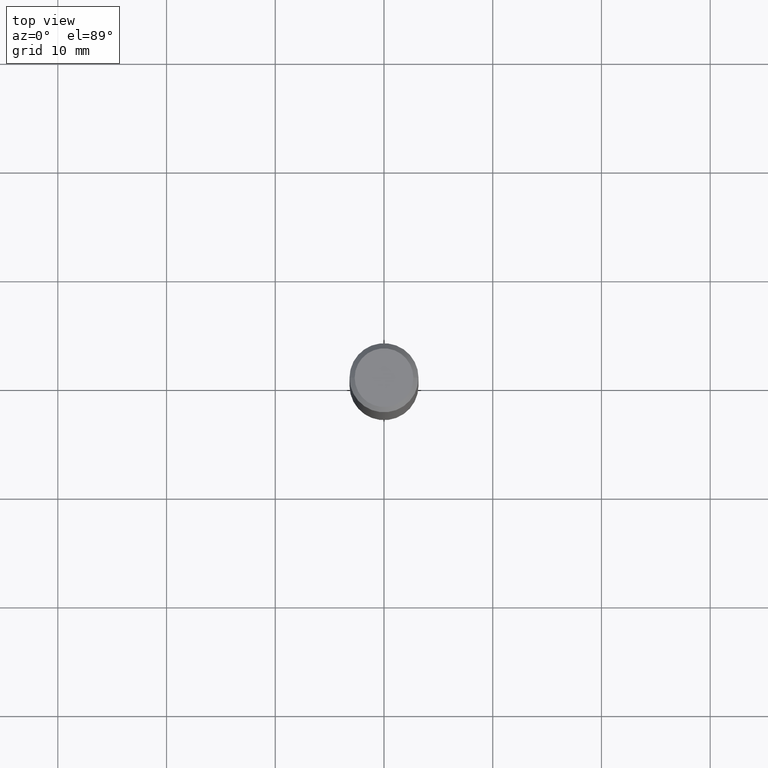
[diagram: clean part render]
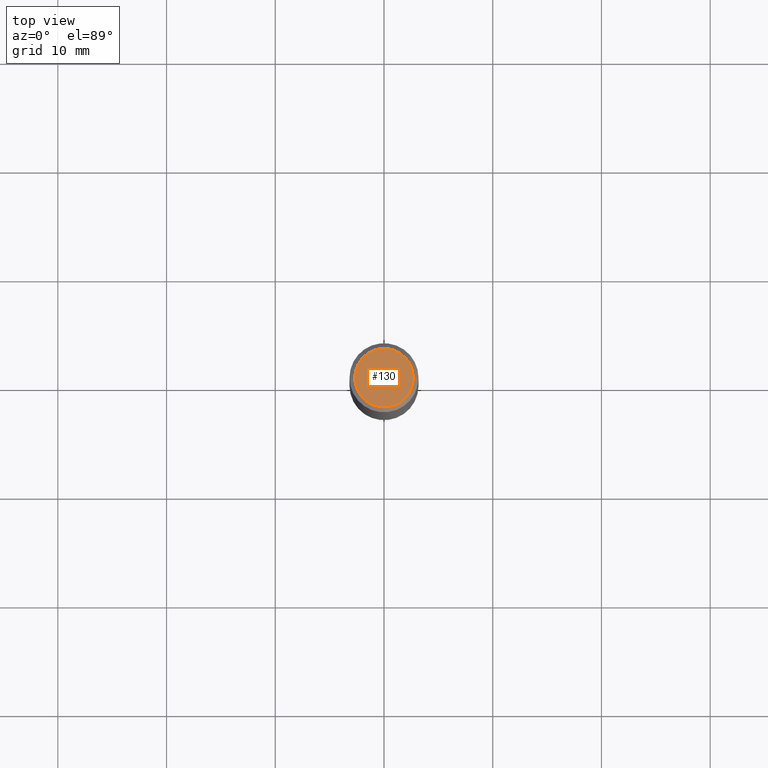
[diagram: same view with one face highlighted and labeled with its STEP entity id]
A machine part, top view. The second image highlights one B-rep face of the part: STEP entity #130.
In plain terms, the highlighted planar face has unit normal (0, -0, -1).
Its self-contained STEP definition (entity closure, byte-faithful):
#8 = DIRECTION ( 'NONE',  ( 2.438088387897960049E-29, -3.491481338843145188E-15, -1.000000000000000000 ) ) ;
#12 = CARTESIAN_POINT ( 'NONE',  ( -1.591006383764329968E-46, 2.271535455632767580E-32, 6.505936120470314915E-18 ) ) ;
#25 = CARTESIAN_POINT ( 'NONE',  ( 0.1062499999999999972, -8.259777185439879685E-16, 6.505936120475796882E-18 ) ) ;
#64 = ORIENTED_EDGE ( 'NONE', *, *, #152, .T. ) ;
#65 = AXIS2_PLACEMENT_3D ( 'NONE', #12, #346, #85 ) ;
#84 = CARTESIAN_POINT ( 'NONE',  ( -0.1062499999999999972, 7.746724220558198188E-16, 6.505936120465012444E-18 ) ) ;
#85 = DIRECTION ( 'NONE',  ( 1.000000000000000000, -6.982962677686266711E-15, 4.875930095424100059E-29 ) ) ;
#111 = VERTEX_POINT ( 'NONE', #84 ) ;
#118 = DIRECTION ( 'NONE',  ( -1.000000000000000000, 6.982962677686265922E-15, -4.876176775795935793E-29 ) ) ;
#130 = ADVANCED_FACE ( 'NONE', ( #350 ), #457, .F. ) ;
#152 = EDGE_CURVE ( 'NONE', #402, #111, #379, .T. ) ;
#196 = CIRCLE ( 'NONE', #258, 0.1062499999999999972 ) ;
#213 = DIRECTION ( 'NONE',  ( 1.000000000000000000, -6.982962677686266711E-15, 4.875930095424100059E-29 ) ) ;
#249 = DIRECTION ( 'NONE',  ( -2.445468806185136597E-29, 3.491481338843145583E-15, 1.000000000000000000 ) ) ;
#258 = AXIS2_PLACEMENT_3D ( 'NONE', #429, #249, #213 ) ;
#346 = DIRECTION ( 'NONE',  ( -2.445468806185136597E-29, 3.491481338843145583E-15, 1.000000000000000000 ) ) ;
#350 = FACE_OUTER_BOUND ( 'NONE', #407, .T. ) ;
#369 = EDGE_CURVE ( 'NONE', #111, #402, #196, .T. ) ;
#379 = CIRCLE ( 'NONE', #65, 0.1062499999999999972 ) ;
#402 = VERTEX_POINT ( 'NONE', #25 ) ;
#405 = ORIENTED_EDGE ( 'NONE', *, *, #369, .T. ) ;
#407 = EDGE_LOOP ( 'NONE', ( #405, #64 ) ) ;
#412 = AXIS2_PLACEMENT_3D ( 'NONE', #456, #8, #118 ) ;
#429 = CARTESIAN_POINT ( 'NONE',  ( -1.591006383764329968E-46, 2.271535455632767580E-32, 6.505936120470314915E-18 ) ) ;
#456 = CARTESIAN_POINT ( 'NONE',  ( -7.955031918821649840E-47, 1.135767727816383790E-32, 3.252968060235157457E-18 ) ) ;
#457 = PLANE ( 'NONE',  #412 ) ;